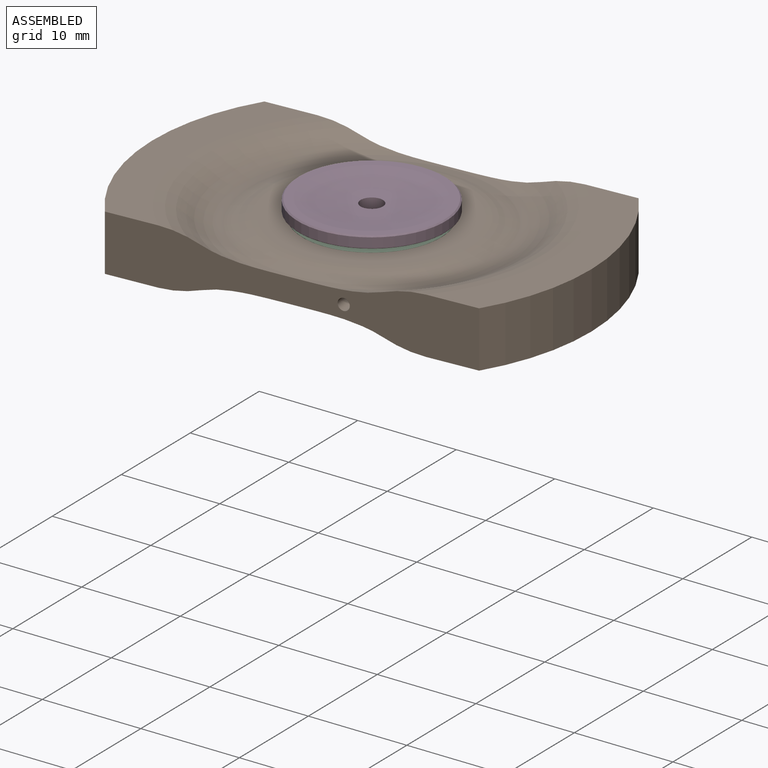
[diagram: assembled view]
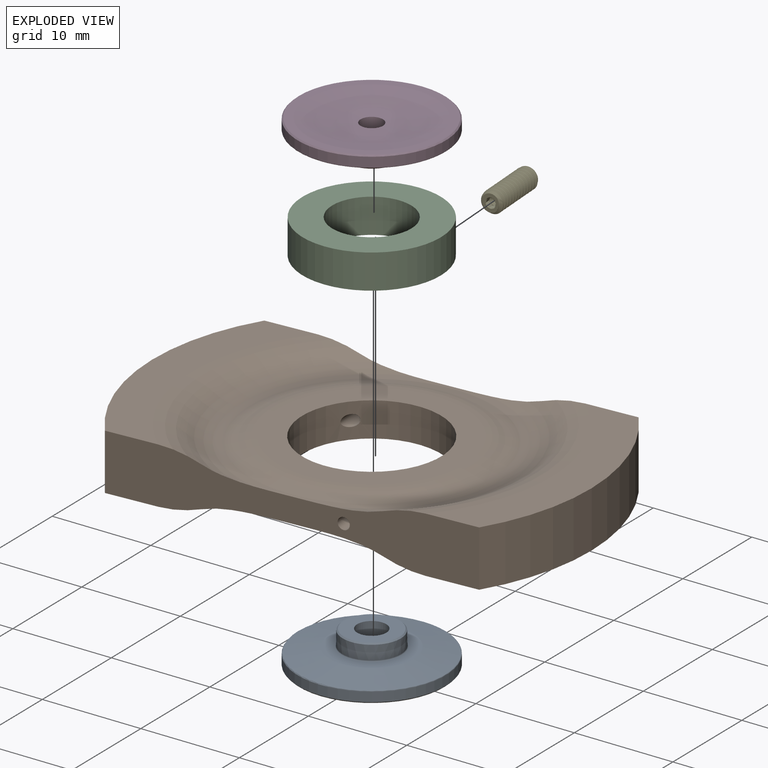
[diagram: exploded view]
GUIDED TOUR — MATED ASSEMBLY (Onshape document 28e8ac95af7766f37be6483c, AutoMate assembly 28e8ac95af7766f37be6483c_51fef199ab4fbd967b47f6ff_ea69191ba2b27f0c1368d602_default)

This assembly has 5 components, labeled P0..P4 below (a component is one placed occurrence of a part; the same part can appear more than once), held together by 7 mates. A mate is a constraint between two components; its type names the relative motion it leaves free:
  CYLINDRICAL — leaves both rotation about and translation along the listed axis free,
  PLANAR — leaves sliding in the plane through the listed point (normal = the listed direction) and rotation about that normal free.
Axis/direction vectors are unit vectors and 'through' points are millimeter coordinates, both in the assembly's world frame.

MATES
  1. PLANAR "Planar 3": P3 <-> P2, direction (0.000, 0.000, -1.000) through (-0.41, -0.22, 1.26) mm
  2. CYLINDRICAL "Cylindrical 3": P2 <-> P0, axis (0.000, 0.000, -1.000) through (-0.41, -0.22, -2.24) mm
  3. CYLINDRICAL "Cylindrical 2": P2 <-> P3, axis (0.000, 0.000, -1.000) through (-0.41, -0.22, -0.49) mm
  4. PLANAR "Planar 2": P2 <-> P0, direction (0.000, 0.000, -1.000) through (-0.41, -0.22, -2.24) mm
  5. CYLINDRICAL "Cylindrical 1": P2 <-> P1, axis (0.000, 0.000, -1.000) through (-0.41, -0.22, -0.49) mm
  6. CYLINDRICAL "Cylindrical 4": P1 <-> P4, axis (0.062, -0.998, 0.000) through (5.40, -12.58, -0.49) mm
  7. PLANAR "Planar 1": P2 <-> P1, direction (0.000, 0.000, 1.000) through (-0.41, -0.22, 1.26) mm

ASSEMBLY ORDER
  1. P2 — the base component [order heuristic]
  2. P1 — core [order heuristic]
  3. P4 — core [order heuristic]
  4. P0 [order verified]
  5. P3 [order verified]
Order-tag legend:
  [order verified] — this step's position reverses a verified removal order: the component was checked to insert without passing through the ones already placed.
  [order heuristic] — the first 3 components form the assembly's core: parts whose collision-free extraction could not be verified, listed in mate-graph order.

Of the 5 components, 3 carry the full construction recipe — the FeatureScript program that regenerates the part's solid from scratch; the rest are supplied as boundary geometry only.
Each toured component is shown spotlighted twice — in the assembled view, then in the exploded view, where a leader line traces a displaced component back to its assembled socket (saturated green if recipe-attached, orange if geometry-only; every other component desaturated gray) — followed by its recipe or geometry summary and the mates that hold it.
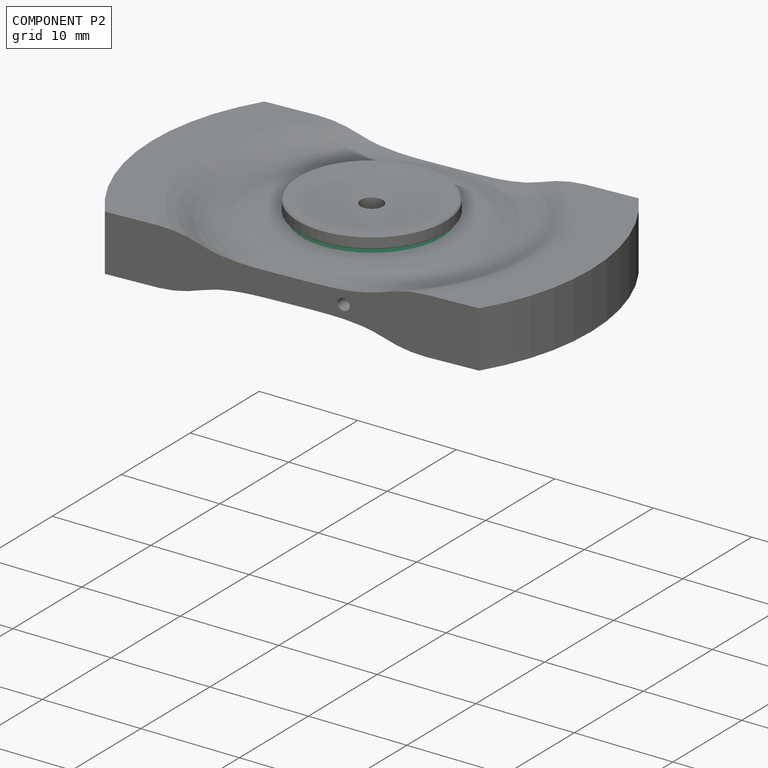
[diagram: component P2 — assembled]
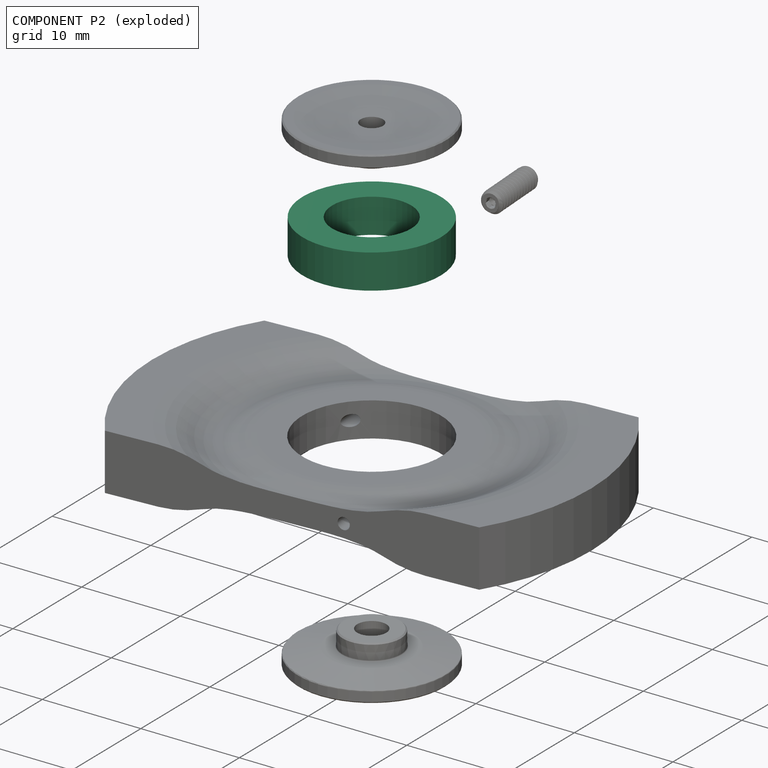
[diagram: component P2 — exploded]
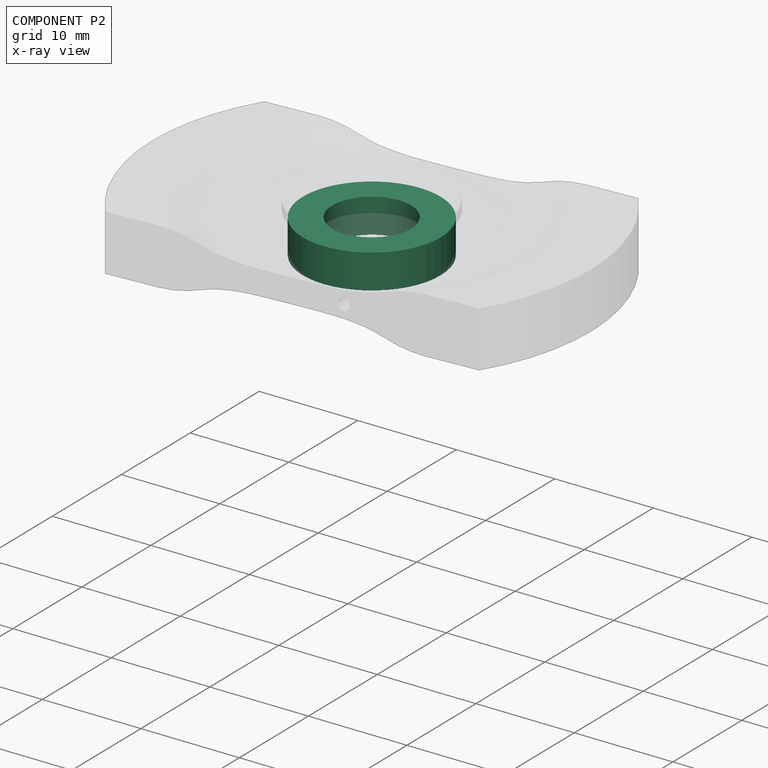
[diagram: component P2 — x-ray view]
COMPONENT P2 — recipe-attached (CADFS 00234739, mesh-verified: the recipe's output STEP matches this component's geometry to below the mesh-comparison resolution (tessellation chordal tolerance ~0.0302 mm)).
Held by: PLANAR mate "Planar 3" to P3; CYLINDRICAL mate "Cylindrical 3" to P0; CYLINDRICAL mate "Cylindrical 2" to P3; PLANAR mate "Planar 2" to P0; CYLINDRICAL mate "Cylindrical 1" to P1; PLANAR mate "Planar 1" to P1.
Construction recipe (FeatureScript — the CAD program that rebuilds this solid; sketch coordinates are in the units given by the * unit suffixes, e.g. mm):

FeatureScript 1511;
import(path : "onshape/std/geometry.fs", version : "1511.0");
import(path : "onshape/std/common.fs", version : "1511.0");
const mm = millimeter;
const VERTEX = EntityType.VERTEX;
const EDGE = EntityType.EDGE;
const FACE = EntityType.FACE;
const BODY = EntityType.BODY;
function v(x, y){return vector(x, y);}
function OD(order){return orderDisambiguation(order);}
function OSD(set){return originalSetDisambiguation(set);}
function TD(topology){return topologyDisambiguation(topology);}
function TDD(query){return trueDependencyDisambiguation(query);}
function sQuery(a, b, c) {return sketchEntityQuery(a, b, c);}

annotation { "Feature Type Name" : "Feature", "Feature Type Description" : "" }
export const myFeature = defineFeature(function(context is Context, id is Id, definition is map)
    precondition{}
    {
        {
            var Q0;
            Q0=qCreatedBy(makeId("Top.planeOp"),FACE);
            var sketch = newSketch(context, id + "F0", { "sketchPlane" : qUnion([Q0])});
            skCircle(sketch, "E0", {"center": v(0, 0) * mm, "radius": 7 * mm});
            skCircle(sketch, "E1", {"center": v(0, 0) * mm, "radius": 4 * mm});
            skSolve(sketch);
        }
        {
            var Q0;
            Q0=qSketchRegion(id+"F0",true);
            extrude(context, id + "F1", {"entities" : qUnion([Q0]), "endBound" : BoundingType.SYMMETRIC, "depth" : 3.5 * mm});
        }
    });
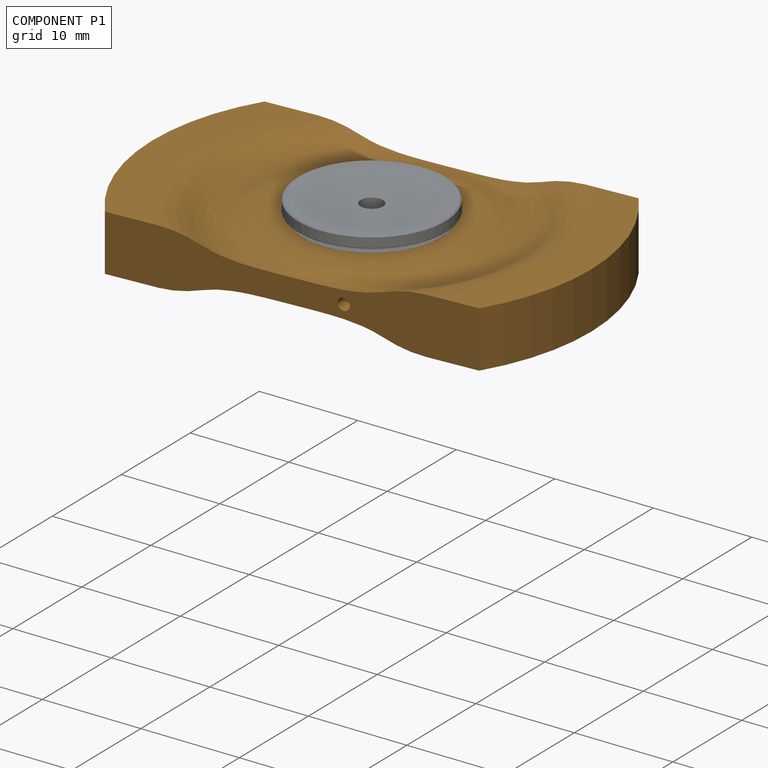
[diagram: component P1 — assembled]
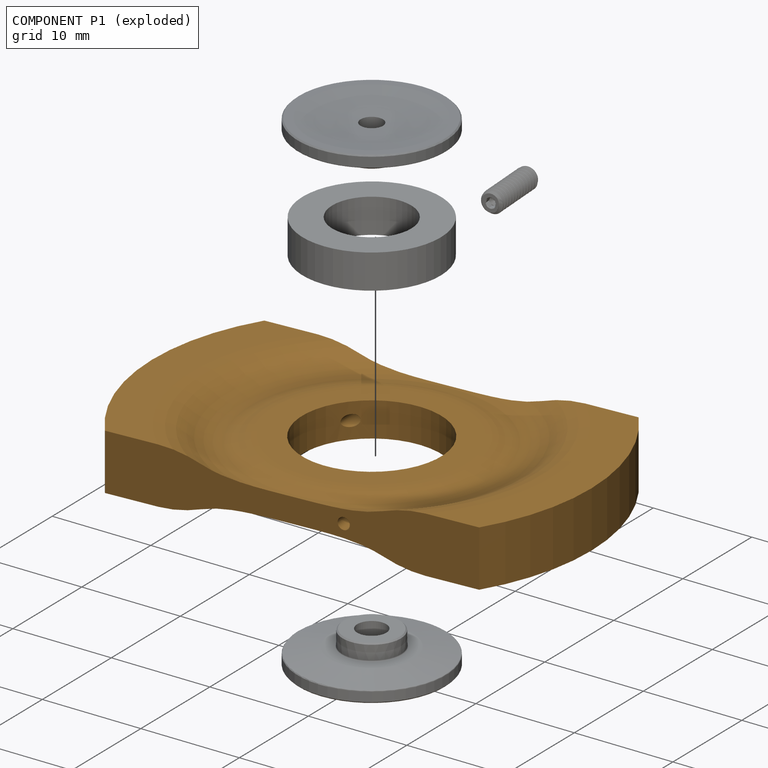
[diagram: component P1 — exploded]
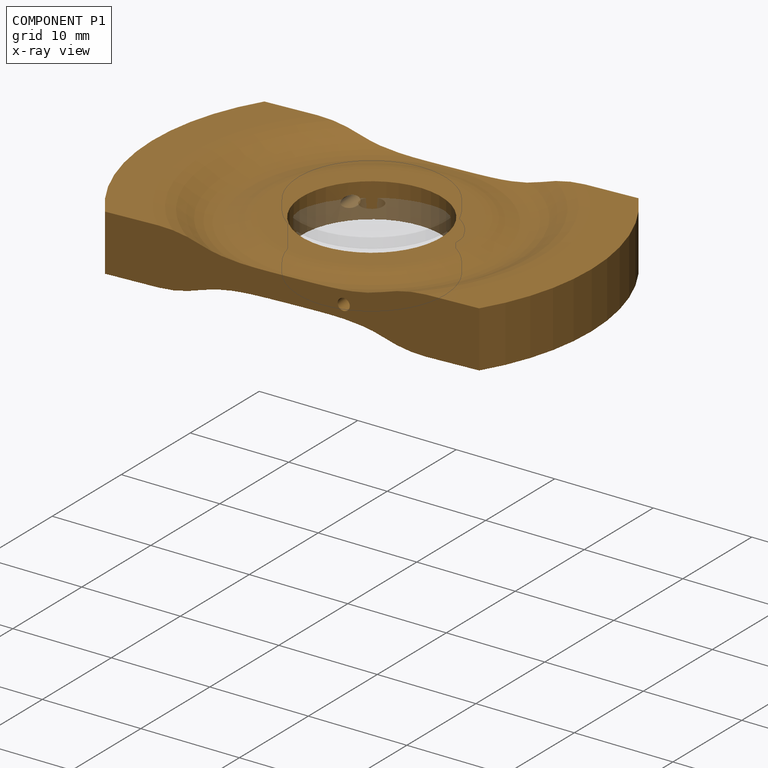
[diagram: component P1 — x-ray view]
COMPONENT P1 — geometry summary (no construction recipe available for this part):
  bounding box: 47.2 x 38.8 x 5.7 mm
  B-rep topology: 1 solid, 21 faces, 112 edges
  volume: 3709 mm^3 (35% of its bounding box)
  symmetry: 2-fold rotationally symmetric about the z axis; mirror-symmetric across its z mid-plane
Held by: CYLINDRICAL mate "Cylindrical 1" to P2; CYLINDRICAL mate "Cylindrical 4" to P4; PLANAR mate "Planar 1" to P2.
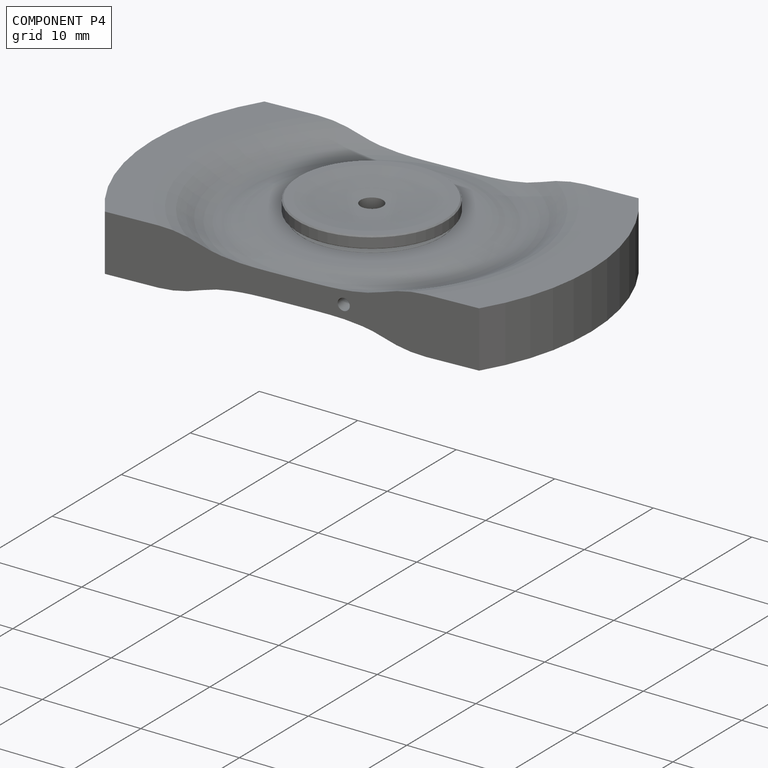
[diagram: component P4 — assembled]
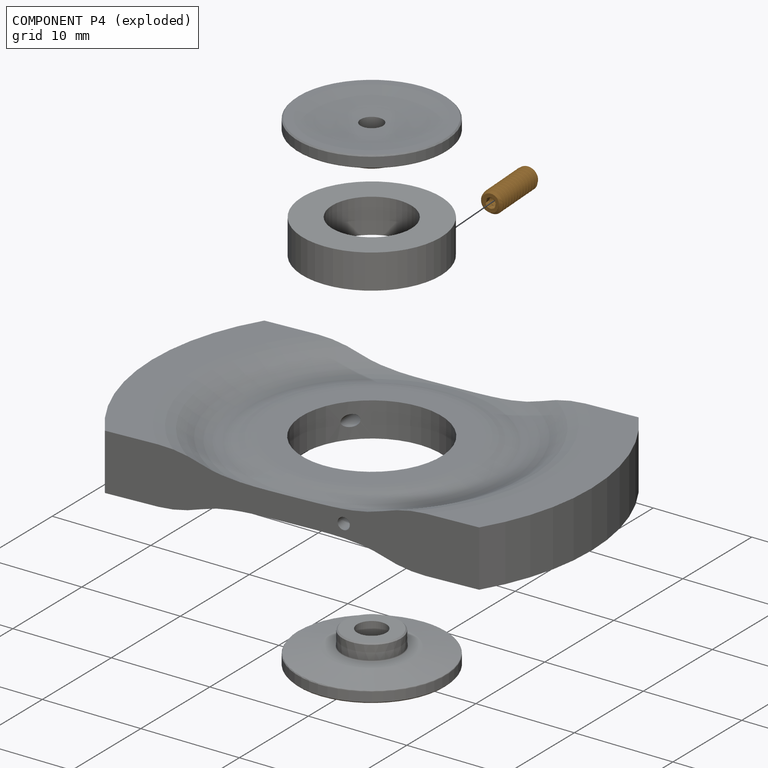
[diagram: component P4 — exploded]
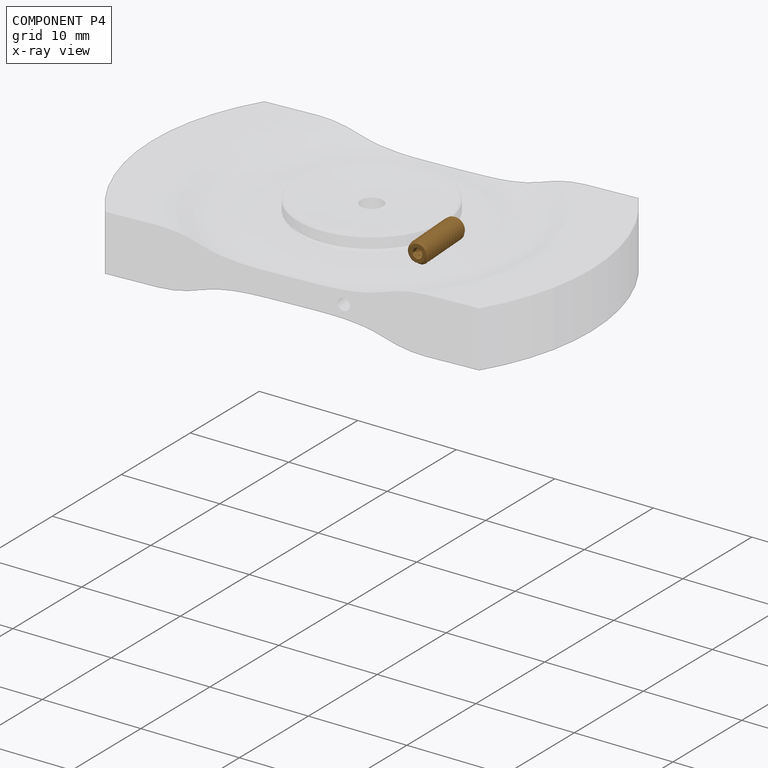
[diagram: component P4 — x-ray view]
COMPONENT P4 — geometry summary (no construction recipe available for this part):
  bounding box: 6.8 x 2.7 x 2.4 mm
  B-rep topology: 1 solid, 27 faces, 116 edges
  volume: 16 mm^3 (37% of its bounding box)
Held by: CYLINDRICAL mate "Cylindrical 4" to P1.
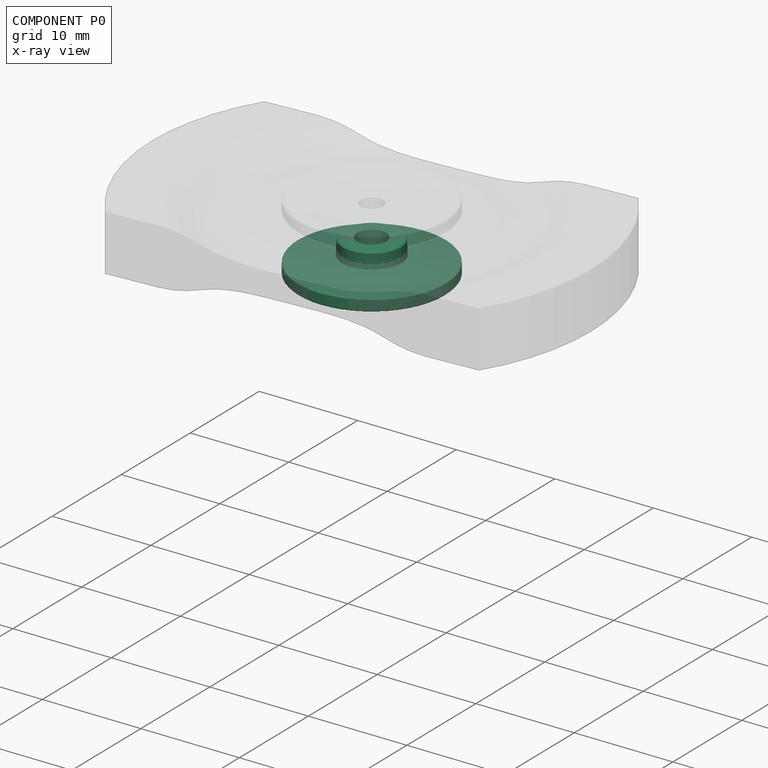
[diagram: component P0 — x-ray view]
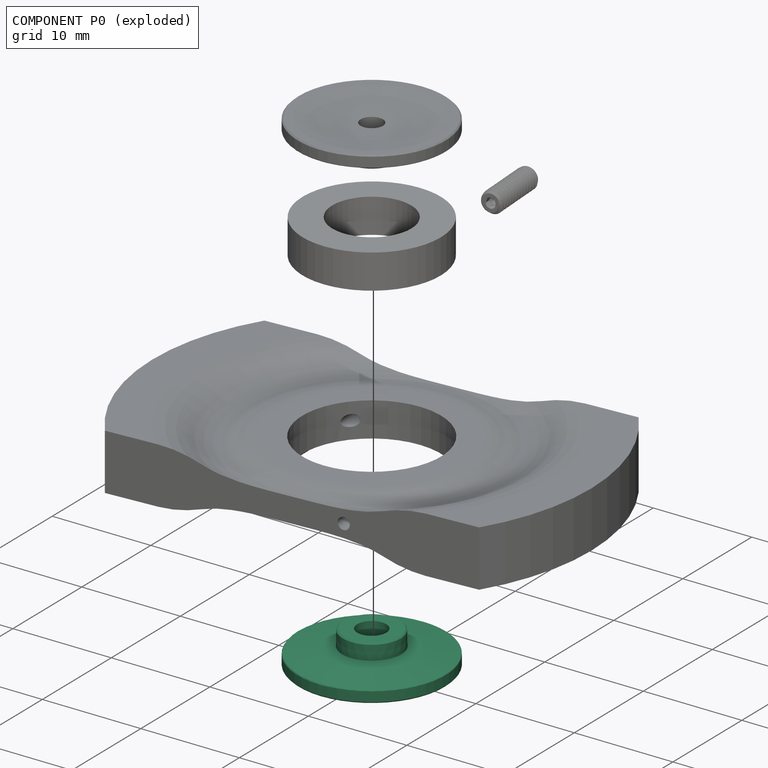
[diagram: component P0 — exploded]
COMPONENT P0 — recipe-attached (CADFS 00234737, mesh-verified: the recipe's output STEP matches this component's geometry to below the mesh-comparison resolution (tessellation chordal tolerance ~0.0322 mm)).
Held by: CYLINDRICAL mate "Cylindrical 3" to P2; PLANAR mate "Planar 2" to P2.
Construction recipe (FeatureScript — the CAD program that rebuilds this solid; sketch coordinates are in the units given by the * unit suffixes, e.g. mm):

FeatureScript 1511;
import(path : "onshape/std/geometry.fs", version : "1511.0");
import(path : "onshape/std/common.fs", version : "1511.0");
const mm = millimeter;
const VERTEX = EntityType.VERTEX;
const EDGE = EntityType.EDGE;
const FACE = EntityType.FACE;
const BODY = EntityType.BODY;
function v(x, y){return vector(x, y);}
function OD(order){return orderDisambiguation(order);}
function OSD(set){return originalSetDisambiguation(set);}
function TD(topology){return topologyDisambiguation(topology);}
function TDD(query){return trueDependencyDisambiguation(query);}
function sQuery(a, b, c) {return sketchEntityQuery(a, b, c);}

annotation { "Feature Type Name" : "Feature", "Feature Type Description" : "" }
export const myFeature = defineFeature(function(context is Context, id is Id, definition is map)
    precondition{}
    {
        {
            var Q0;
            Q0=qCreatedBy(makeId("Front.planeOp"),FACE);
            var sketch = newSketch(context, id + "F0", { "sketchPlane" : qUnion([Q0])});
            skLineSegment(sketch, "E0", {"start": v(0, 0) * mm, "end": v(2.95, 0) * mm});
            skLineSegment(sketch, "E1", {"start": v(2.95, 0) * mm, "end": v(2.97, 1.65) * mm});
            skLineSegment(sketch, "E2", {"start": v(2.97, 1.65) * mm, "end": v(4.24, 1.65) * mm});
            skLineSegment(sketch, "E3", {"start": v(4.24, 1.65) * mm, "end": v(7.5, 2.22) * mm});
            skLineSegment(sketch, "E4", {"start": v(7.5, 2.22) * mm, "end": v(7.5, 3.4) * mm});
            skLineSegment(sketch, "E5", {"start": v(7.5, 3.4) * mm, "end": v(6.5, 3.4) * mm});
            skLineSegment(sketch, "E6", {"start": v(0, 2.9) * mm, "end": v(0, 0) * mm});
            skArc(sketch, "E7", {"start": v(0, 2.9) * mm, "mid": v(3.26, 3.03) * mm, "end": v(6.5, 3.4) * mm});
            skPoint(sketch, "E8.orphan", {"position": v(0, 3.4) * mm});
            skLineSegment(sketch, "E9", {"start": v(0, 0) * mm, "end": v(0, -2.37) * mm, "construction": true});
            skSolve(sketch);
        }
        {
            var Q0;
            Q0=qSketchRegion(id+"F0",true);
            var Q1;
            Q1=sQuery(id+"F0.wireOp",EDGE,"E6");
            revolve(context, id + "F1", {"entities" : qUnion([Q0]), "axis" : qUnion([Q1]), "revolveType" : RevolveType.FULL});
        }
        {
            var Q0;
            Q0=makeQuery(id+"F1.opRevolve","SWEPT_EDGE",EDGE,{"disambiguationData":[OSD([sQuery(id+"F0.wireOp",EDGE,"E0"),sQuery(id+"F0.wireOp",EDGE,"E1")])]});
            var Q1;
            Q1=makeQuery(id+"F1.opRevolve","SWEPT_EDGE",EDGE,{"disambiguationData":[OSD([sQuery(id+"F0.wireOp",EDGE,"E4"),sQuery(id+"F0.wireOp",EDGE,"E5")])]});
            chamfer(context, id + "F2", {"entities" : qUnion([Q0, Q1]), "width" : 0.13 * mm, "tangentPropagation" : true});
        }
        {
            var Q0;
            Q0=makeQuery(id+"F1.opRevolve","SWEPT_EDGE",EDGE,{"disambiguationData":[OSD([sQuery(id+"F0.wireOp",EDGE,"KmEllf09-JBKP-2wvp-Ln3d-dT31Av5gxA5O"),sQuery(id+"F0.wireOp",EDGE,"SqjkA4CO-rQVQ-ybkh-YT7C-LuhsKEooFiCv")])]});
            var Q1;
            Q1=makeQuery(id+"F1.opRevolve","SWEPT_EDGE",EDGE,{"disambiguationData":[OSD([sQuery(id+"F0.wireOp",EDGE,"E3"),sQuery(id+"F0.wireOp",EDGE,"KmEllf09-JBKP-2wvp-Ln3d-dT31Av5gxA5O")])]});
            var Q2;
            Q2=makeQuery(id+"F1.opRevolve","SWEPT_EDGE",EDGE,{"disambiguationData":[OSD([sQuery(id+"F0.wireOp",EDGE,"E2"),sQuery(id+"F0.wireOp",EDGE,"E3")])]});
            var Q3;
            Q3=makeQuery(id+"F1.opRevolve","SWEPT_EDGE",EDGE,{"disambiguationData":[OSD([sQuery(id+"F0.wireOp",EDGE,"E5"),sQuery(id+"F0.wireOp",EDGE,"E7")])]});
            var Q4;
            Q4=makeQuery(id+"F1.opRevolve","SWEPT_EDGE",EDGE,{"disambiguationData":[OSD([sQuery(id+"F0.wireOp",EDGE,"E1"),sQuery(id+"F0.wireOp",EDGE,"E2")])]});
            fillet(context, id + "F3", {"entities" : qUnion([Q0, Q1, Q2, Q3, Q4]), "radius" : .1 * mm, "tangentPropagation" : true, "allowEdgeOverflow" : false});
        }
        {
            var Q0;
            Q0=makeQuery(id+"F1.opRevolve","SWEPT_FACE",FACE,{"disambiguationData":[OSD([sQuery(id+"F0.wireOp",EDGE,"E5")])]});
            var sketch = newSketch(context, id + "F4", { "sketchPlane" : qUnion([Q0])});
            skPoint(sketch, "E10.0", {"position": v(0, 0) * mm});
            skSolve(sketch);
        }
        {
            var Q0;
            Q0=sQuery(id+"F4.wireOp",VERTEX,"E10.0");
            var Q1;
            Q1=makeQuery(id+"F1.opRevolve","SWEPT_BODY",BODY,{"disambiguationData":[OSD([sQuery(id+"F0.wireOp",EDGE,"E0"),sQuery(id+"F0.wireOp",EDGE,"E1"),sQuery(id+"F0.wireOp",EDGE,"E2"),sQuery(id+"F0.wireOp",EDGE,"E3"),sQuery(id+"F0.wireOp",EDGE,"E4"),sQuery(id+"F0.wireOp",EDGE,"E5"),sQuery(id+"F0.wireOp",EDGE,"E6"),sQuery(id+"F0.wireOp",EDGE,"E7")])]});
            hole(context, id + "F5", {"style" : HoleStyle.C_SINK, "endStyle" : HoleEndStyle.BLIND, "standardTappedOrClearance" : lookupTablePath({ "standard" : "ANSI", "fit" : "Close", "size" : "#4", "type" : "Clearance" }), "standardBlindInLast" : lookupTablePath({ "fit" : "Close", "standard" : "ANSI", "size" : "#4", "type" : "Clearance" }), "holeDiameter" : 2.95 * mm, "cSinkDiameter" : 6.48 * mm, "cSinkAngle" : 82 * degree, "holeDepth" : 12.7 * mm, "startFromSketch" : true, "locations" : qUnion([Q0]), "scope" : qUnion([Q1])});
        }
    });
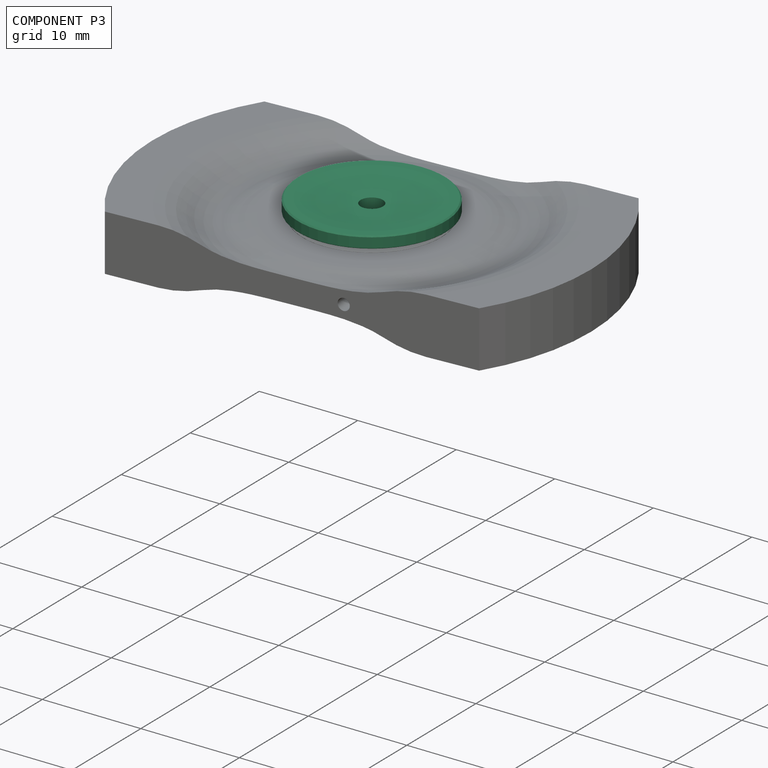
[diagram: component P3 — assembled]
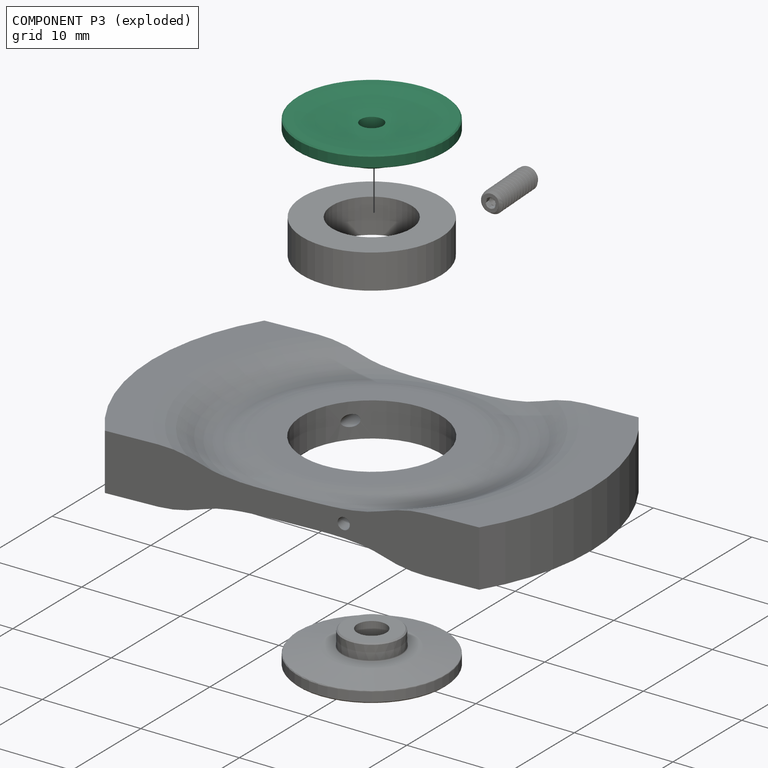
[diagram: component P3 — exploded]
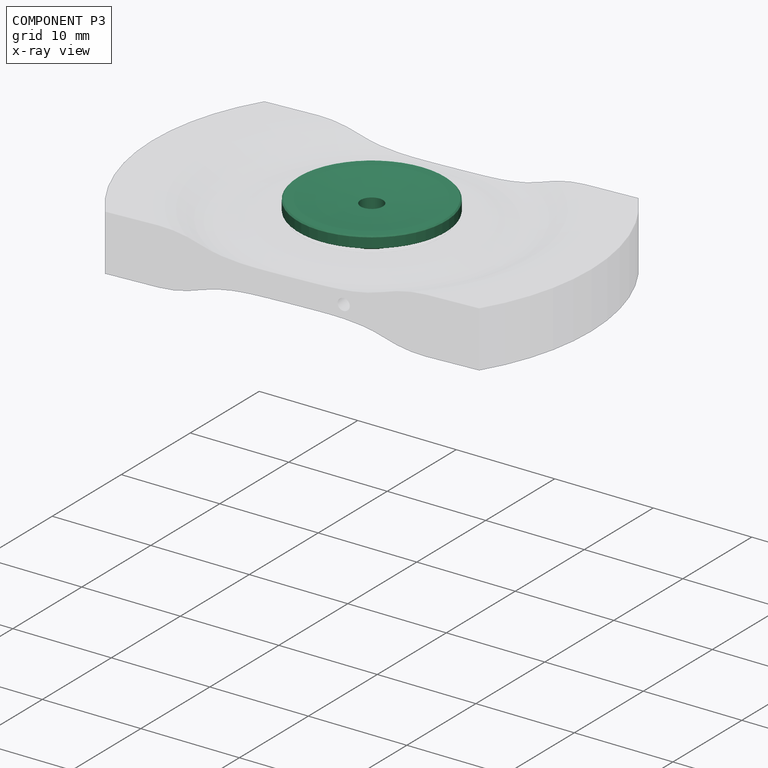
[diagram: component P3 — x-ray view]
COMPONENT P3 — recipe-attached (CADFS 00234736, mesh-verified: the recipe's output STEP matches this component's geometry to below the mesh-comparison resolution (tessellation chordal tolerance ~0.0322 mm)).
Held by: PLANAR mate "Planar 3" to P2; CYLINDRICAL mate "Cylindrical 2" to P2.
Construction recipe (FeatureScript — the CAD program that rebuilds this solid; sketch coordinates are in the units given by the * unit suffixes, e.g. mm):

FeatureScript 1511;
import(path : "onshape/std/geometry.fs", version : "1511.0");
import(path : "onshape/std/common.fs", version : "1511.0");
const mm = millimeter;
const VERTEX = EntityType.VERTEX;
const EDGE = EntityType.EDGE;
const FACE = EntityType.FACE;
const BODY = EntityType.BODY;
function v(x, y){return vector(x, y);}
function OD(order){return orderDisambiguation(order);}
function OSD(set){return originalSetDisambiguation(set);}
function TD(topology){return topologyDisambiguation(topology);}
function TDD(query){return trueDependencyDisambiguation(query);}
function sQuery(a, b, c) {return sketchEntityQuery(a, b, c);}

annotation { "Feature Type Name" : "Feature", "Feature Type Description" : "" }
export const myFeature = defineFeature(function(context is Context, id is Id, definition is map)
    precondition{}
    {
        {
            var Q0;
            Q0=qCreatedBy(makeId("Front.planeOp"),FACE);
            var sketch = newSketch(context, id + "F0", { "sketchPlane" : qUnion([Q0])});
            skLineSegment(sketch, "E0", {"start": v(0, 0) * mm, "end": v(2.95, 0) * mm});
            skLineSegment(sketch, "E1", {"start": v(2.95, 0) * mm, "end": v(2.97, 1.65) * mm});
            skLineSegment(sketch, "E2", {"start": v(2.97, 1.65) * mm, "end": v(4.24, 1.65) * mm});
            skLineSegment(sketch, "E3", {"start": v(4.24, 1.65) * mm, "end": v(7.5, 2.22) * mm});
            skLineSegment(sketch, "E4", {"start": v(7.5, 2.22) * mm, "end": v(7.5, 3.4) * mm});
            skLineSegment(sketch, "E5", {"start": v(7.5, 3.4) * mm, "end": v(6.5, 3.4) * mm});
            skLineSegment(sketch, "E6", {"start": v(0, 2.9) * mm, "end": v(0, 0) * mm});
            skArc(sketch, "E7", {"start": v(0, 2.9) * mm, "mid": v(3.26, 3.03) * mm, "end": v(6.5, 3.4) * mm});
            skPoint(sketch, "E8.orphan", {"position": v(0, 3.4) * mm});
            skLineSegment(sketch, "E9", {"start": v(0, 0) * mm, "end": v(0, -2.37) * mm, "construction": true});
            skSolve(sketch);
        }
        {
            var Q0;
            Q0=qSketchRegion(id+"F0",true);
            var Q1;
            Q1=sQuery(id+"F0.wireOp",EDGE,"E6");
            revolve(context, id + "F1", {"entities" : qUnion([Q0]), "axis" : qUnion([Q1]), "revolveType" : RevolveType.FULL});
        }
        {
            var Q0;
            Q0=makeQuery(id+"F1.opRevolve","SWEPT_EDGE",EDGE,{"disambiguationData":[OSD([sQuery(id+"F0.wireOp",EDGE,"E0"),sQuery(id+"F0.wireOp",EDGE,"E1")])]});
            var Q1;
            Q1=makeQuery(id+"F1.opRevolve","SWEPT_EDGE",EDGE,{"disambiguationData":[OSD([sQuery(id+"F0.wireOp",EDGE,"E4"),sQuery(id+"F0.wireOp",EDGE,"E5")])]});
            chamfer(context, id + "F2", {"entities" : qUnion([Q0, Q1]), "width" : 0.13 * mm, "tangentPropagation" : true});
        }
        {
            var Q0;
            Q0=makeQuery(id+"F1.opRevolve","SWEPT_EDGE",EDGE,{"disambiguationData":[OSD([sQuery(id+"F0.wireOp",EDGE,"KmEllf09-JBKP-2wvp-Ln3d-dT31Av5gxA5O"),sQuery(id+"F0.wireOp",EDGE,"SqjkA4CO-rQVQ-ybkh-YT7C-LuhsKEooFiCv")])]});
            var Q1;
            Q1=makeQuery(id+"F1.opRevolve","SWEPT_EDGE",EDGE,{"disambiguationData":[OSD([sQuery(id+"F0.wireOp",EDGE,"E3"),sQuery(id+"F0.wireOp",EDGE,"KmEllf09-JBKP-2wvp-Ln3d-dT31Av5gxA5O")])]});
            var Q2;
            Q2=makeQuery(id+"F1.opRevolve","SWEPT_EDGE",EDGE,{"disambiguationData":[OSD([sQuery(id+"F0.wireOp",EDGE,"E2"),sQuery(id+"F0.wireOp",EDGE,"E3")])]});
            var Q3;
            Q3=makeQuery(id+"F1.opRevolve","SWEPT_EDGE",EDGE,{"disambiguationData":[OSD([sQuery(id+"F0.wireOp",EDGE,"E5"),sQuery(id+"F0.wireOp",EDGE,"E7")])]});
            var Q4;
            Q4=makeQuery(id+"F1.opRevolve","SWEPT_EDGE",EDGE,{"disambiguationData":[OSD([sQuery(id+"F0.wireOp",EDGE,"E1"),sQuery(id+"F0.wireOp",EDGE,"E2")])]});
            fillet(context, id + "F3", {"entities" : qUnion([Q0, Q1, Q2, Q3, Q4]), "radius" : .1 * mm, "tangentPropagation" : true, "allowEdgeOverflow" : false});
        }
        {
            var Q0;
            Q0=makeQuery(id+"F1.opRevolve","SWEPT_FACE",FACE,{"disambiguationData":[OSD([sQuery(id+"F0.wireOp",EDGE,"E5")])]});
            var sketch = newSketch(context, id + "F4", { "sketchPlane" : qUnion([Q0])});
            skPoint(sketch, "E10.0", {"position": v(0, 0) * mm});
            skSolve(sketch);
        }
        {
            var Q0;
            Q0=sQuery(id+"F4.wireOp",VERTEX,"E10.0");
            var Q1;
            Q1=makeQuery(id+"F1.opRevolve","SWEPT_BODY",BODY,{"disambiguationData":[OSD([sQuery(id+"F0.wireOp",EDGE,"E0"),sQuery(id+"F0.wireOp",EDGE,"E1"),sQuery(id+"F0.wireOp",EDGE,"E2"),sQuery(id+"F0.wireOp",EDGE,"E3"),sQuery(id+"F0.wireOp",EDGE,"E4"),sQuery(id+"F0.wireOp",EDGE,"E5"),sQuery(id+"F0.wireOp",EDGE,"E6"),sQuery(id+"F0.wireOp",EDGE,"E7")])]});
            hole(context, id + "F5", {"style" : HoleStyle.SIMPLE, "endStyle" : HoleEndStyle.BLIND, "standardTappedOrClearance" : lookupTablePath({ "standard" : "ANSI", "engagement" : "75%", "pitch" : "40 tpi", "size" : "#4", "type" : "Tapped" }), "standardBlindInLast" : lookupTablePath({ "standard" : "ANSI", "engagement" : "75%", "pitch" : "40 tpi", "size" : "#4", "type" : "Tapped" }), "holeDiameter" : 2.26 * mm, "holeDepth" : 12.7 * mm, "startFromSketch" : true, "locations" : qUnion([Q0]), "scope" : qUnion([Q1]), "majorDiameter" : 2.84 * mm});
        }
    });
PROVENANCE & LICENSES
Assembly (occurrences, transforms, mates, per-part STEP geometry): AutoMate dataset, Zenodo record 7776208, CC0.
Construction recipes: CADFS (HuggingFace VladPyatov/CADFS, CC-BY-4.0, layered over the ABC dataset), FeatureScript reconstruction programs keyed by ABC model id.
Join: ABC meta listings map ABC model id -> Onshape documentId; within a shared document, parts are matched by geometric signature (bounding-box dims + volume at 0.1% relative tolerance, exact B-rep face/solid counts).
Verification: 3 of this assembly's 5 components carry a recipe attachment, and every attachment is mesh-verified: the CADFS STEP and the AutoMate member STEP were compared as meshes in their shared local frame (symmetric sampled-point-to-mesh distance); worst across the 3 attachments: below the mesh-comparison resolution (tessellation chordal tolerance ~0.0322 mm) on a 21 mm part.
Renders: orthographic iso camera (az 35 / el 25); the floor grid conveys scale (grid pitch printed in each image; no ruler). In the exploded view each component is displaced by its stored offset vector: the offsets alone carry the explosion direction (mate normal/axis signs are not orientation cues and do not encode it), and separation distances are assigned per mate-chain, not proportionally to assembly-order depth.
